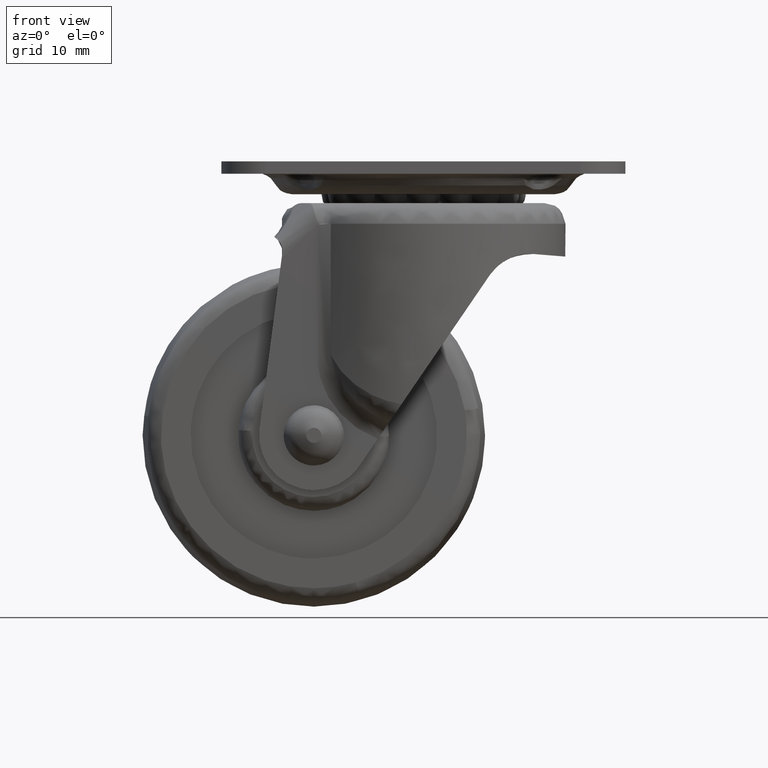
[diagram: clean part render]
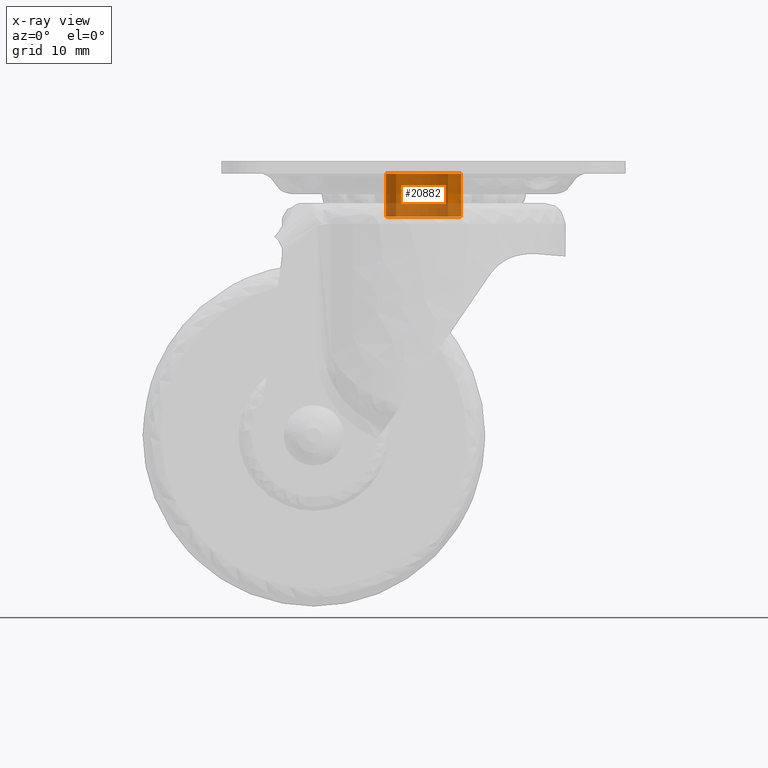
[diagram: x-ray — body ghosted, one internal face saturated and labeled with its STEP entity id]
A machine part, front view, then the same camera in x-ray: the body is ghosted and one INTERNAL B-rep face — a face not visible from any outside direction — is saturated and labeled: STEP entity #20882.
In plain terms, the highlighted face is a freeform B-spline surface patch.
Its self-contained STEP definition (entity closure, byte-faithful):
#20733=CARTESIAN_POINT('',(3.551581211101139,-4.199556036172557,-8.257494900000001));
#20734=CARTESIAN_POINT('',(3.671770700605094,-4.097911307773331,-8.257494900000001));
#20735=CARTESIAN_POINT('',(3.785950166315646,-3.989559040567580,-8.257494900000001));
#20736=CARTESIAN_POINT('',(7.775509206883227,-0.203608874251934,-8.257494900000001));
#20737=CARTESIAN_POINT('',(3.989559040567580,3.785950166315646,-8.257494900000001));
#20738=CARTESIAN_POINT('',(0.203608874251934,7.775509206883227,-8.257494900000001));
#20739=CARTESIAN_POINT('',(-3.785950166315646,3.989559040567580,-8.257494900000001));
#20740=CARTESIAN_POINT('',(-7.775509206883227,0.203608874251934,-8.257494900000001));
#20741=CARTESIAN_POINT('',(-3.989559040567580,-3.785950166315646,-8.257494900000001));
#20742=CARTESIAN_POINT('',(3.551581211101139,-4.199556036172557,-1.638561602500051));
#20743=CARTESIAN_POINT('',(3.671770700605094,-4.097911307773331,-1.638561602500051));
#20744=CARTESIAN_POINT('',(3.785950166315646,-3.989559040567580,-1.638561602500051));
#20745=CARTESIAN_POINT('',(7.775509206883227,-0.203608874251934,-1.638561602500051));
#20746=CARTESIAN_POINT('',(3.989559040567580,3.785950166315646,-1.638561602500051));
#20747=CARTESIAN_POINT('',(0.203608874251934,7.775509206883227,-1.638561602500051));
#20748=CARTESIAN_POINT('',(-3.785950166315646,3.989559040567580,-1.638561602500051));
#20749=CARTESIAN_POINT('',(-7.775509206883227,0.203608874251934,-1.638561602500052));
#20750=CARTESIAN_POINT('',(-3.989559040567580,-3.785950166315646,-1.638561602500051));
#20758=(BOUNDED_SURFACE()B_SPLINE_SURFACE(2,1,((#20733,#20742),(#20734,#20743),(#20735,#20744),(#20736,#20745),(#20737,#20746),(#20738,#20747),(#20739,#20748),(#20740,#20749),(#20741,#20750)),.UNSPECIFIED.,.F.,.F.,.U.)B_SPLINE_SURFACE_WITH_KNOTS((3,2,2,2,3),(2,2),(0.0,0.364507934888324,9.477206307096413,18.589904679304500,27.702603051512590),(0.0,6.618933297499951),.UNSPECIFIED.)GEOMETRIC_REPRESENTATION_ITEM()RATIONAL_B_SPLINE_SURFACE(((0.977505800795127,0.977505800795127),(0.988284271247462,0.988284271247462),(1.0,1.0),(0.707106781186548,0.707106781186548),(1.0,1.0),(0.707106781186548,0.707106781186548),(1.0,1.0),(0.707106781186548,0.707106781186548),(1.0,1.0)))REPRESENTATION_ITEM('')SURFACE());
#20759=CARTESIAN_POINT('',(3.551579615206877,-4.199557385825630,-8.099995000000074));
#20760=VERTEX_POINT('',#20759);
#20761=CARTESIAN_POINT('',(5.500000000000000,0.0,-8.099995000000000));
#20762=VERTEX_POINT('',#20761);
#20763=CARTESIAN_POINT('',(3.551579615206877,-4.199557385825630,-8.099995000000076));
#20764=CARTESIAN_POINT('',(5.500000000000001,-2.551771801602176,-8.099995000000000));
#20765=CARTESIAN_POINT('',(5.500000000000000,0.0,-8.099995000000000));
#20773=(BOUNDED_CURVE()B_SPLINE_CURVE(2,(#20763,#20764,#20765),.UNSPECIFIED.,.F.,.U.)B_SPLINE_CURVE_WITH_KNOTS((3,3),(0.362408032284090,0.500000000000000),.UNSPECIFIED.)CURVE()GEOMETRIC_REPRESENTATION_ITEM()RATIONAL_B_SPLINE_CURVE((0.855039485337489,0.838800982771242,1.0))REPRESENTATION_ITEM(''));
#20774=EDGE_CURVE('',#20760,#20762,#20773,.T.);
#20775=ORIENTED_EDGE('',*,*,#20774,.T.);
#20776=CARTESIAN_POINT('',(-5.500000000000000,0.0,-8.099995000000000));
#20777=VERTEX_POINT('',#20776);
#20778=CARTESIAN_POINT('',(5.500000000000000,0.0,-8.099995000000000));
#20779=CARTESIAN_POINT('',(5.500000000000001,5.500000000000001,-8.099995000000002));
#20780=CARTESIAN_POINT('',(0.0,5.500000000000000,-8.099995000000000));
#20781=CARTESIAN_POINT('',(-5.500000000000001,5.500000000000001,-8.099995000000002));
#20782=CARTESIAN_POINT('',(-5.500000000000000,0.0,-8.099995000000000));
#20790=(BOUNDED_CURVE()B_SPLINE_CURVE(2,(#20778,#20779,#20780,#20781,#20782),.UNSPECIFIED.,.F.,.U.)B_SPLINE_CURVE_WITH_KNOTS((3,2,3),(0.500000000000000,0.750000000000000,1.0),.UNSPECIFIED.)CURVE()GEOMETRIC_REPRESENTATION_ITEM()RATIONAL_B_SPLINE_CURVE((1.0,0.707106781186548,1.0,0.707106781186548,1.0))REPRESENTATION_ITEM(''));
#20791=EDGE_CURVE('',#20762,#20777,#20790,.T.);
#20792=ORIENTED_EDGE('',*,*,#20791,.T.);
#20793=CARTESIAN_POINT('',(-3.989559781846239,-3.785949385170623,-8.099995000000007));
#20794=VERTEX_POINT('',#20793);
#20795=CARTESIAN_POINT('',(-5.500000000000000,0.0,-8.099995000000000));
#20796=CARTESIAN_POINT('',(-5.500000000000000,-2.194276878709700,-8.099995000000000));
#20797=CARTESIAN_POINT('',(-3.989559781846238,-3.785949385170624,-8.099995000000007));
#20805=(BOUNDED_CURVE()B_SPLINE_CURVE(2,(#20795,#20796,#20797),.UNSPECIFIED.,.F.,.U.)B_SPLINE_CURVE_WITH_KNOTS((3,3),(0.0,0.121049497110482),.UNSPECIFIED.)CURVE()GEOMETRIC_REPRESENTATION_ITEM()RATIONAL_B_SPLINE_CURVE((1.0,0.858181692622245,0.853699663557586))REPRESENTATION_ITEM(''));
#20806=EDGE_CURVE('',#20777,#20794,#20805,.T.);
#20807=ORIENTED_EDGE('',*,*,#20806,.T.);
#20808=CARTESIAN_POINT('',(-3.989559772914989,-3.785949394582206,-1.799999000000051));
#20809=VERTEX_POINT('',#20808);
#20810=CARTESIAN_POINT('',(-3.989559781846239,-3.785949385170623,-8.099995000000007));
#20811=CARTESIAN_POINT('',(-3.989559772914989,-3.785949394582206,-1.799999000000051));
#20812=QUASI_UNIFORM_CURVE('',1,(#20810,#20811),.UNSPECIFIED.,.F.,.U.);
#20813=EDGE_CURVE('',#20794,#20809,#20812,.T.);
#20814=ORIENTED_EDGE('',*,*,#20813,.T.);
#20815=CARTESIAN_POINT('',(-5.500000000000000,-6.735335E-016,-1.799999000000050));
#20816=VERTEX_POINT('',#20815);
#20817=CARTESIAN_POINT('',(-5.500000000000000,0.0,-1.799999000000050));
#20818=CARTESIAN_POINT('',(-5.500000000000000,-2.194276886229683,-1.799999000000050));
#20819=CARTESIAN_POINT('',(-3.989559772914989,-3.785949394582205,-1.799999000000051));
#20827=(BOUNDED_CURVE()B_SPLINE_CURVE(2,(#20817,#20818,#20819),.UNSPECIFIED.,.F.,.U.)B_SPLINE_CURVE_WITH_KNOTS((3,3),(0.0,0.484197989865985),.UNSPECIFIED.)CURVE()GEOMETRIC_REPRESENTATION_ITEM()RATIONAL_B_SPLINE_CURVE((1.0,0.858181692205148,0.853699663531222))REPRESENTATION_ITEM(''));
#20828=EDGE_CURVE('',#20816,#20809,#20827,.T.);
#20829=ORIENTED_EDGE('',*,*,#20828,.F.);
#20830=CARTESIAN_POINT('',(-6.735335E-016,5.500000000000000,-1.799999000000050));
#20831=VERTEX_POINT('',#20830);
#20832=CARTESIAN_POINT('',(0.0,5.500000000000000,-1.799999000000050));
#20833=CARTESIAN_POINT('',(-5.500000000000001,5.500000000000001,-1.799999000000050));
#20834=CARTESIAN_POINT('',(-5.500000000000000,0.0,-1.799999000000050));
#20842=(BOUNDED_CURVE()B_SPLINE_CURVE(2,(#20832,#20833,#20834),.UNSPECIFIED.,.F.,.U.)CURVE()GEOMETRIC_REPRESENTATION_ITEM()QUASI_UNIFORM_CURVE()RATIONAL_B_SPLINE_CURVE((1.0,0.707106781186548,1.0))REPRESENTATION_ITEM(''));
#20843=EDGE_CURVE('',#20831,#20816,#20842,.T.);
#20844=ORIENTED_EDGE('',*,*,#20843,.F.);
#20845=CARTESIAN_POINT('',(5.500000000000000,6.735335E-016,-1.799999000000050));
#20846=VERTEX_POINT('',#20845);
#20847=CARTESIAN_POINT('',(5.500000000000000,0.0,-1.799999000000050));
#20848=CARTESIAN_POINT('',(5.500000000000001,5.500000000000001,-1.799999000000050));
#20849=CARTESIAN_POINT('',(0.0,5.500000000000000,-1.799999000000050));
#20857=(BOUNDED_CURVE()B_SPLINE_CURVE(2,(#20847,#20848,#20849),.UNSPECIFIED.,.F.,.U.)CURVE()GEOMETRIC_REPRESENTATION_ITEM()QUASI_UNIFORM_CURVE()RATIONAL_B_SPLINE_CURVE((1.0,0.707106781186548,1.0))REPRESENTATION_ITEM(''));
#20858=EDGE_CURVE('',#20846,#20831,#20857,.T.);
#20859=ORIENTED_EDGE('',*,*,#20858,.F.);
#20860=CARTESIAN_POINT('',(3.551579634438508,-4.199557369561388,-1.799999000000051));
#20861=VERTEX_POINT('',#20860);
#20862=CARTESIAN_POINT('',(3.551579634438508,-4.199557369561387,-1.799999000000050));
#20863=CARTESIAN_POINT('',(5.500000000000000,-2.551771786297877,-1.799999000000051));
#20864=CARTESIAN_POINT('',(5.500000000000000,0.0,-1.799999000000050));
#20872=(BOUNDED_CURVE()B_SPLINE_CURVE(2,(#20862,#20863,#20864),.UNSPECIFIED.,.F.,.U.)B_SPLINE_CURVE_WITH_KNOTS((3,3),(0.449632131905110,1.0),.UNSPECIFIED.)CURVE()GEOMETRIC_REPRESENTATION_ITEM()RATIONAL_B_SPLINE_CURVE((0.855039485174107,0.838800983582190,1.0))REPRESENTATION_ITEM(''));
#20873=EDGE_CURVE('',#20861,#20846,#20872,.T.);
#20874=ORIENTED_EDGE('',*,*,#20873,.F.);
#20875=CARTESIAN_POINT('',(3.551579615206877,-4.199557385825630,-8.099995000000074));
#20876=CARTESIAN_POINT('',(3.551579634438508,-4.199557369561388,-1.799999000000051));
#20877=QUASI_UNIFORM_CURVE('',1,(#20875,#20876),.UNSPECIFIED.,.F.,.U.);
#20878=EDGE_CURVE('',#20760,#20861,#20877,.T.);
#20879=ORIENTED_EDGE('',*,*,#20878,.F.);
#20880=EDGE_LOOP('',(#20775,#20792,#20807,#20814,#20829,#20844,#20859,#20874,#20879));
#20881=FACE_OUTER_BOUND('',#20880,.T.);
#20882=ADVANCED_FACE('',(#20881),#20758,.T.);